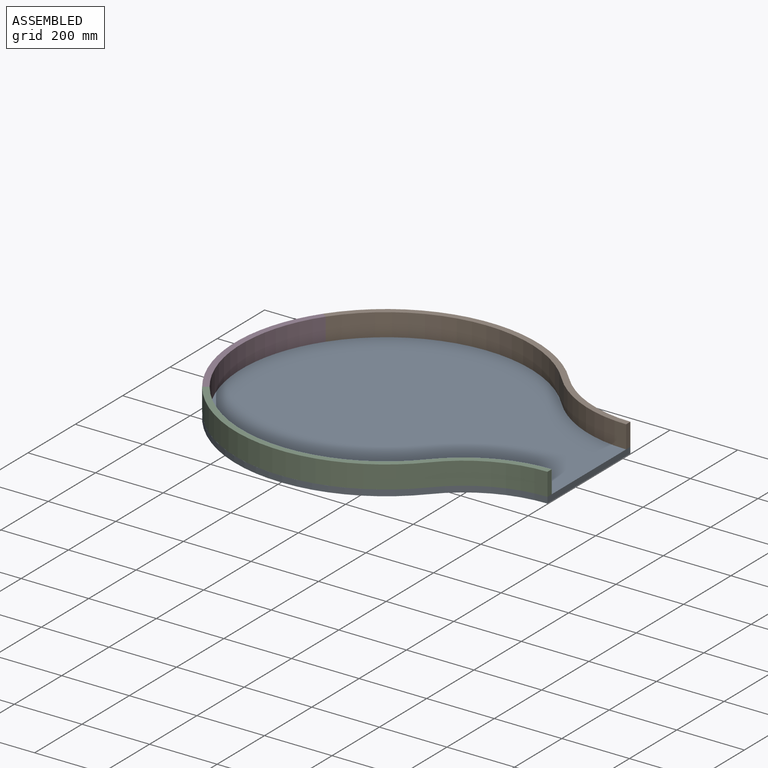
[diagram: assembled view]
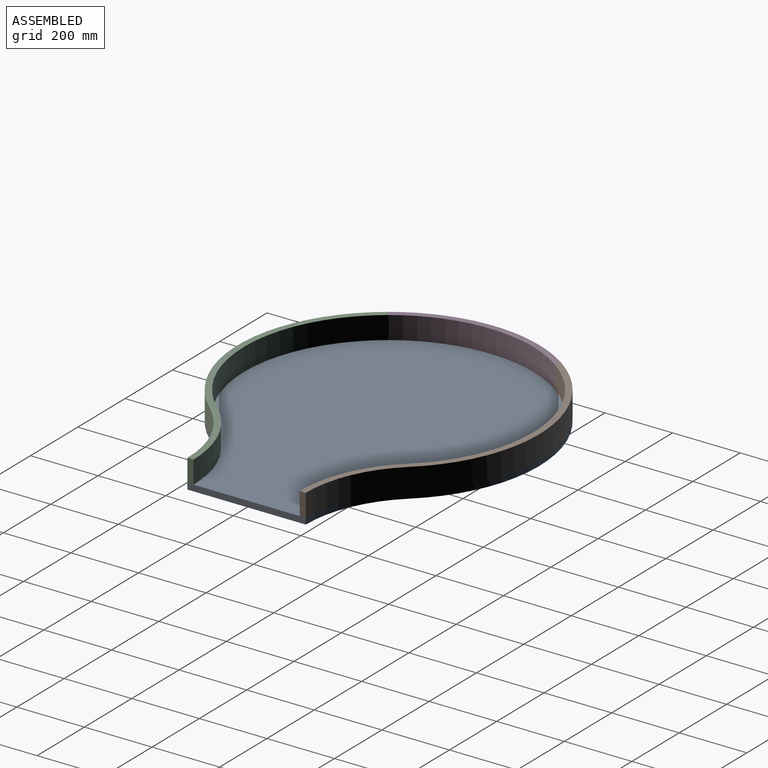
[diagram: assembled view, second angle]
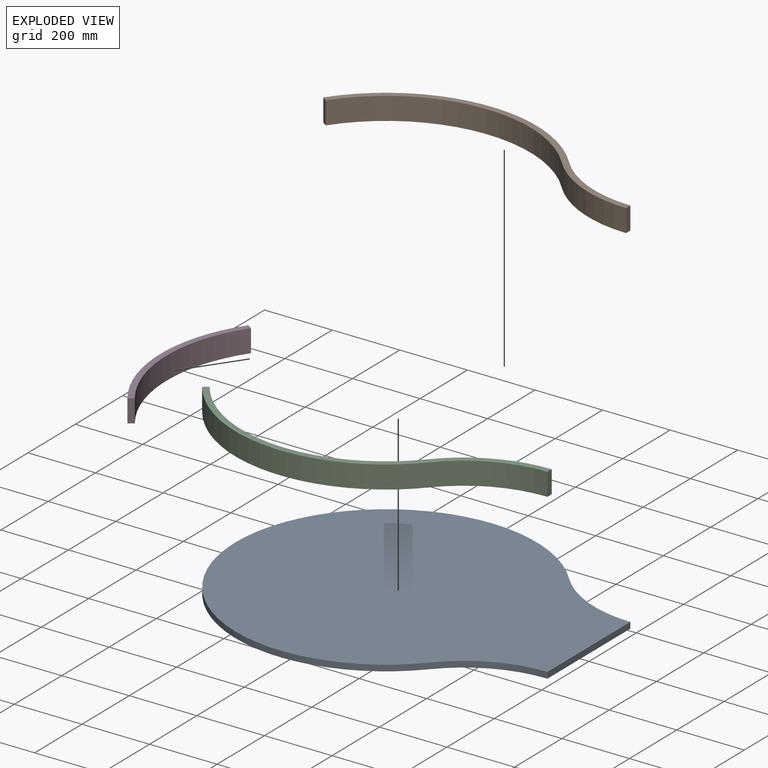
[diagram: exploded view]
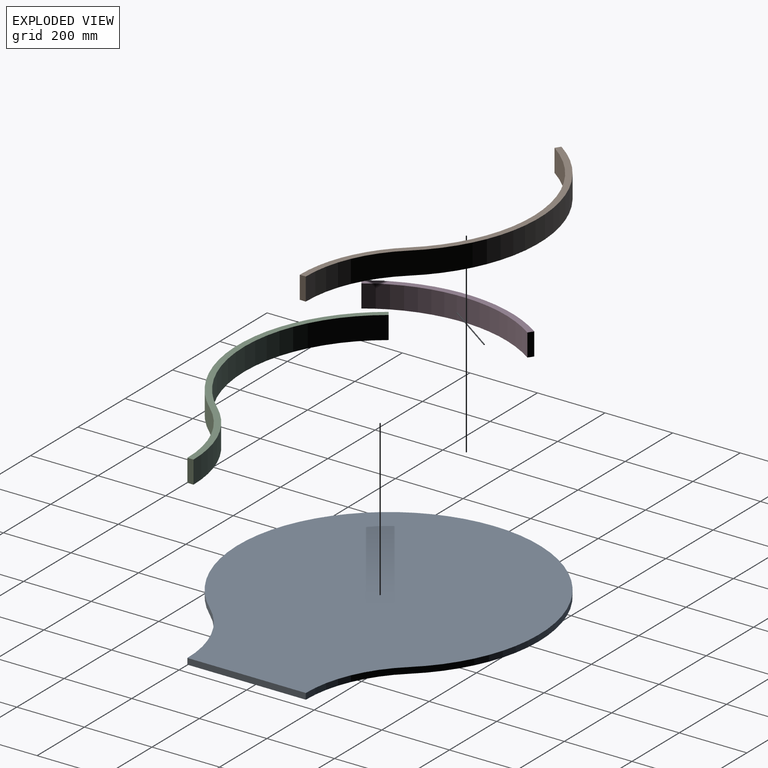
[diagram: exploded view, second angle]
ASSEMBLY  parts=4 mates=3
PART A: 6 faces, bbox 1046x892x18 mm
  f0: cylinder r=354mm len=265.5mm, axis (0,0,-1), area 5403.9mm2, adj f1,f3,f4,f5
  f1: cylinder r=446mm len=892mm, axis (0,0,-1), area 38837.2mm2, adj f0,f2,f4,f5
  f2: cylinder r=354mm len=265.5mm, axis (0,0,-1), area 5403.9mm2, adj f1,f3,f4,f5
  f3: plane 350.3x18mm, normal (1,0,0), area 6305.4mm2, adj f0,f2,f4,f5
  f4: plane 1046x892mm, normal (0,0,1), area 692364mm2, adj f0,f1,f2,f3
  f5: plane 1046x892mm, normal (0,0,-1), area 692364mm2, adj f0,f1,f2,f3
PART B: 8 faces, bbox 965.3x288.8x67 mm
  f0: cylinder r=446mm len=699.84mm, axis (0,0,-1), area 54026.5mm2, adj f1,f5,f6,f7
  f1: plane 67x14.74mm, normal (-0.57,-0.82,0), area 1206mm2, adj f0,f2,f6,f7
  f2: cylinder r=428mm len=671.6mm, axis (0,0,-1), area 51846mm2, adj f1,f3,f6,f7
  f3: cylinder r=372mm len=279mm, axis (0,0,-1), area 21137.1mm2, adj f2,f4,f6,f7
  f4: plane 67x18mm, normal (1,0,0), area 1206mm2, adj f3,f5,f6,f7
  f5: cylinder r=354mm len=265.5mm, axis (0,0,-1), area 20114.3mm2, adj f0,f4,f6,f7
  f6: plane 965.34x288.85mm, normal (0,0,1), area 19762.9mm2, adj f0,f1,f2,f3,f4,f5
  f7: plane 965.34x288.85mm, normal (0,0,-1), area 19762.9mm2, adj f0,f1,f2,f3,f4,f5
PART C: 8 faces, bbox 965.3x288.8x67 mm
  f0: cylinder r=428mm len=671.6mm, axis (0,0,-1), area 51846mm2, adj f1,f5,f6,f7
  f1: plane 67x14.74mm, normal (-0.57,0.82,0), area 1206mm2, adj f0,f2,f6,f7
  f2: cylinder r=446mm len=699.84mm, axis (0,0,-1), area 54026.5mm2, adj f1,f3,f6,f7
  f3: cylinder r=354mm len=265.5mm, axis (0,0,-1), area 20114.3mm2, adj f2,f4,f6,f7
  f4: plane 67x18mm, normal (1,0,0), area 1206mm2, adj f3,f5,f6,f7
  f5: cylinder r=372mm len=279mm, axis (0,0,-1), area 21137.1mm2, adj f0,f4,f6,f7
  f6: plane 965.34x288.85mm, normal (0,0,1), area 19762.9mm2, adj f0,f1,f2,f3,f4,f5
  f7: plane 965.34x288.85mm, normal (0,0,-1), area 19762.9mm2, adj f0,f1,f2,f3,f4,f5
PART D: 6 faces, bbox 95.4x511.6x67 mm
  f0: plane 67x14.74mm, normal (0.57,0.82,0), area 1206mm2, adj f1,f3,f4,f5
  f1: cylinder r=446mm len=511.63mm, axis (0,0,-1), area 36507.8mm2, adj f0,f2,f4,f5
  f2: plane 67x14.74mm, normal (0.57,-0.82,0), area 1206mm2, adj f1,f3,f4,f5
  f3: cylinder r=428mm len=490.98mm, axis (0,0,-1), area 35034.3mm2, adj f0,f2,f4,f5
  f4: plane 511.63x95.4mm, normal (0,0,1), area 9610.1mm2, adj f0,f1,f2,f3
  f5: plane 511.63x95.4mm, normal (0,0,-1), area 9610.1mm2, adj f0,f1,f2,f3
PLACE A at identity fixed
PLACE B t=(0,0,18)mm
PLACE C t=(0,0,18)mm
PLACE D t=(0,0,18)mm
MATE fastened D.f0 <-> B.f1  axis (0.57,0.82,0) through (-365.34,255.82,18)mm
MATE fastened A.f4 <-> B.f7  axis (0,0,1) through (600,175.15,18)mm
MATE fastened C.f7 <-> A.f4  axis (0,0,-1) through (600,-175.15,18)mm
